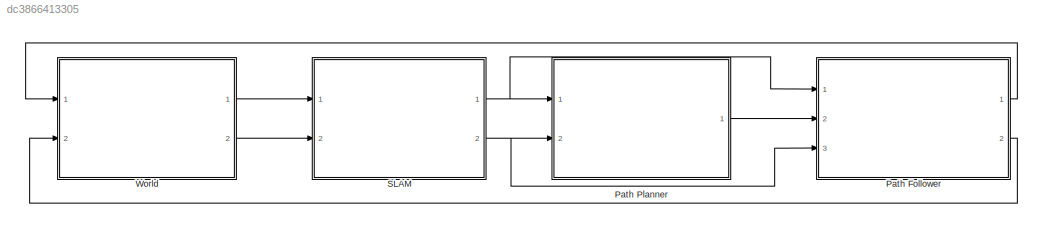
MODEL slx_dc3866413305
KIND model
CONFIG AbsTol = auto
CONFIG EnableMultiTasking = off
CONFIG FixedStep = auto
CONFIG InitFcn = %Load track data generated by 'parse_track.py'\nload("track_data")\n\n%Set initial position and pose of Car\nc_init_x = 0;\nc_init_y = 0;\nc_init_theta = 0;\n
CONFIG MaxStep = auto
CONFIG MinStep = auto
CONFIG RelTol = 1e-3
CONFIG SampleTimeConstraint = Unconstrained
CONFIG Solver = VariableStepAuto
CONFIG SolverName = VariableStepAuto
CONFIG StartTime = 0.0
CONFIG StopTime = 10.0
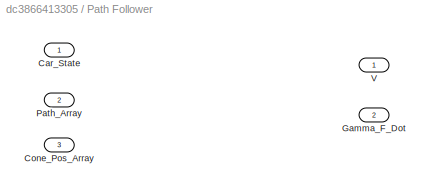
BLOCK [SubSystem] Path Follower
  Ports = [3, 2]
  RequestExecContextInheritance = off
BLOCK [Inport] Path Follower/Car_State 
  IconDisplay = Port number
BLOCK [Inport] Path Follower/Cone_Pos_Array
  IconDisplay = Port number
  Port = 3
BLOCK [Outport] Path Follower/Gamma_F_Dot 
  IconDisplay = Port number
  Port = 2
BLOCK [Inport] Path Follower/Path_Array 
  IconDisplay = Port number
  Port = 2
BLOCK [Outport] Path Follower/V
  IconDisplay = Port number
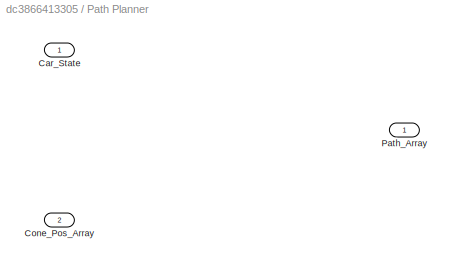
BLOCK [SubSystem] Path Planner
  Ports = [2, 1]
  RequestExecContextInheritance = off
BLOCK [Inport] Path Planner/Car_State
  IconDisplay = Port number
BLOCK [Inport] Path Planner/Cone_Pos_Array
  IconDisplay = Port number
  Port = 2
BLOCK [Outport] Path Planner/Path_Array
  IconDisplay = Port number
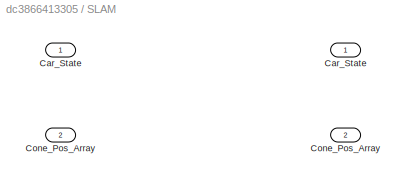
BLOCK [SubSystem] SLAM
  Ports = [2, 2]
  RequestExecContextInheritance = off
BLOCK [Inport] SLAM/Car_State
  IconDisplay = Port number
BLOCK [Outport] SLAM/Car_State 
  IconDisplay = Port number
BLOCK [Outport] SLAM/Cone_Pos_Array
  IconDisplay = Port number
  Port = 2
BLOCK [Inport] SLAM/Cone_Pos_Array 
  IconDisplay = Port number
  Port = 2
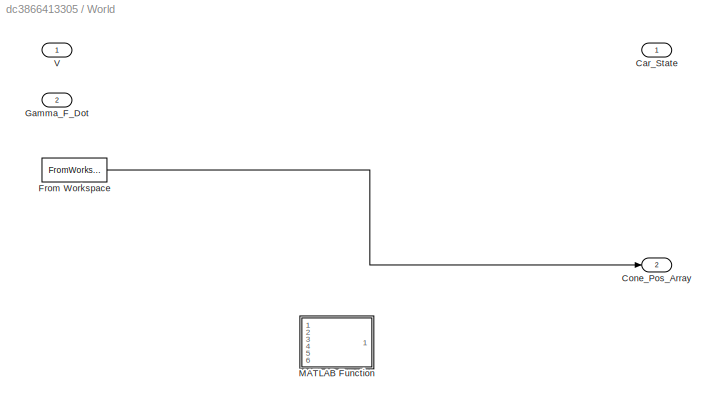
BLOCK [SubSystem] World
  Ports = [2, 2]
  RequestExecContextInheritance = off
BLOCK [Outport] World/Car_State
  IconDisplay = Port number
BLOCK [Outport] World/Cone_Pos_Array
  IconDisplay = Port number
  Port = 2
BLOCK [FromWorkspace] World/From Workspace
  SampleTime = 0
  VariableName = cones
  ZeroCross = on
BLOCK [Inport] World/Gamma_F_Dot 
  IconDisplay = Port number
  Port = 2
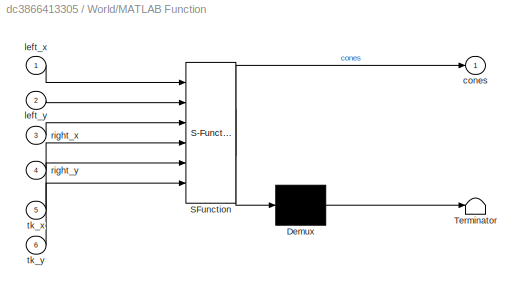
BLOCK [SubSystem] World/MATLAB Function
  ErrorFcn = Stateflow.Translate.translate
  PermitHierarchicalResolution = ExplicitOnly
  Ports = [6, 1]
  RequestExecContextInheritance = off
  SFBlockType = MATLAB Function
  TreatAsAtomicUnit = on
BLOCK [Demux] World/MATLAB Function/ Demux 
  Outputs = 1
  Ports = [1, 1]
BLOCK [S-Function] World/MATLAB Function/ SFunction 
  EnableBusSupport = off
  FunctionName = sf_sfun
  PortCounts = [6 2]
  Ports = [6, 2]
  SFcnIsStateOwnerBlock = off
  SFunctionDeploymentMode = off
  Tag = Stateflow S-Function System 2
BLOCK [Terminator] World/MATLAB Function/ Terminator 
BLOCK [Outport] World/MATLAB Function/cones
  IconDisplay = Port number
BLOCK [Inport] World/MATLAB Function/left_x
  IconDisplay = Port number
BLOCK [Inport] World/MATLAB Function/left_y
  IconDisplay = Port number
  Port = 2
BLOCK [Inport] World/MATLAB Function/right_x
  IconDisplay = Port number
  Port = 3
BLOCK [Inport] World/MATLAB Function/right_y
  IconDisplay = Port number
  Port = 4
BLOCK [Inport] World/MATLAB Function/tk_x
  IconDisplay = Port number
  Port = 5
BLOCK [Inport] World/MATLAB Function/tk_y
  IconDisplay = Port number
  Port = 6
BLOCK [Inport] World/V
  IconDisplay = Port number
LINE Path Follower:1 -> World:1
LINE Path Follower:2 -> World:2
LINE Path Planner:1 -> Path Follower:2
NET SLAM:1 -> Path Follower:1, Path Planner:1
NET SLAM:2 -> Path Follower:3, Path Planner:2
LINE World/From Workspace:1 -> World/Cone_Pos_Array:1
LINE World:1 -> SLAM:1
LINE World:2 -> SLAM:2
note: NET lines group one-source signal fan-out (src -> all destinations, sorted); 1:1 wires keep LINE
CHART World/MATLAB Function states=1 transitions=1
  STATE_LABEL 'eML_blk_kernel()'
  STATE_LABEL "SCRIPT:\nfunction cones = fcn(left_x,left_y,right_x,right_y,tk_x,tk_y)\n\n    i = 1;\n    cones = Cone.empty;\n    for j = 1:numel(left_x)\n        cones(i) = Cone(left_x(j),left_y(j),'b');\n        i=i+1;\n    end\n\n    for j = 1:numel(right_x)\n        cones(i) = Cone(right_x(j),right_y(j),'y');\n        i=i+1;\n    end\n\n    for j = 1:numel(tk_x)\n        cones(i) = Cone(tk_x(j),tk_y(j),'r');\n        i=i+1;\n...<+12ch>"
